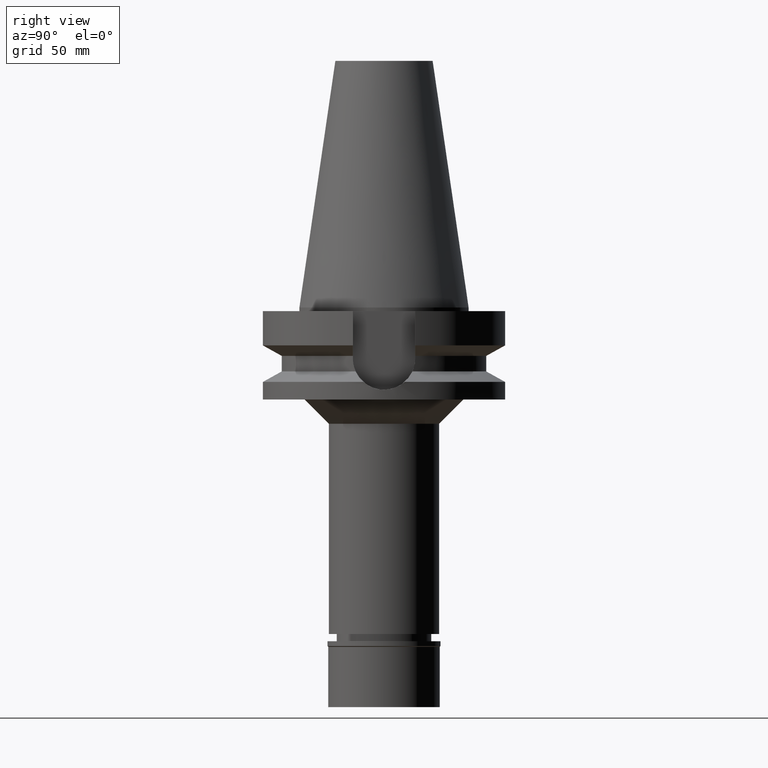
[diagram: clean part render]
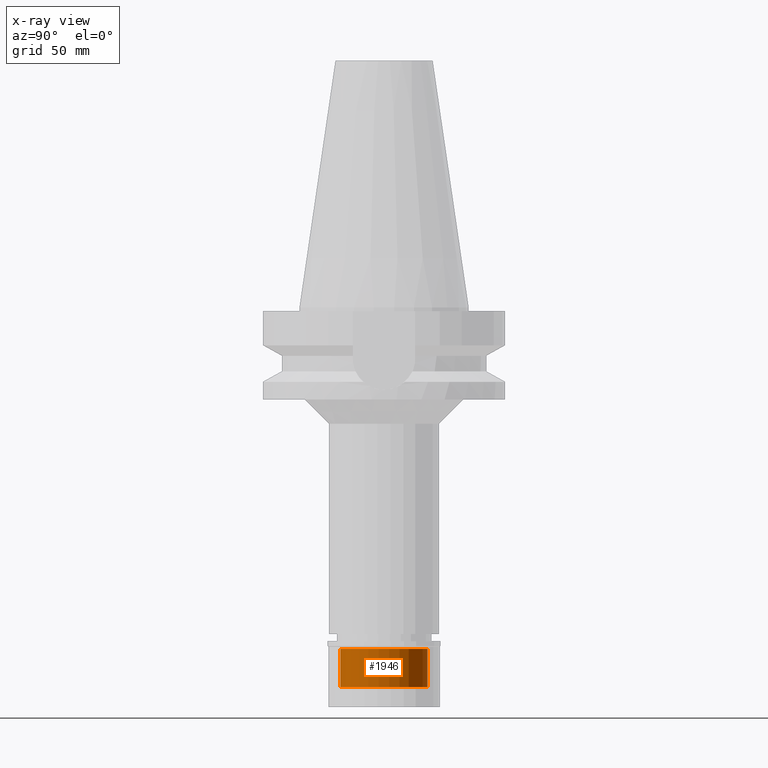
[diagram: x-ray — body ghosted, one internal face saturated and labeled with its STEP entity id]
A machine part, right view, then the same camera in x-ray: the body is ghosted and one INTERNAL B-rep face — a face not visible from any outside direction — is saturated and labeled: STEP entity #1946.
In plain terms, the highlighted cylindrical surface (partial cylindrical patch) has radius 18 mm, axis along (0, 0, -1).
Its self-contained STEP definition (entity closure, byte-faithful):
#132 = CARTESIAN_POINT ( 'NONE',  ( 0.0000000000000000000, 0.0000000000000000000, -19.00000000000000000 ) ) ;
#159 = CARTESIAN_POINT ( 'NONE',  ( 0.0000000000000000000, 0.0000000000000000000, 0.0000000000000000000 ) ) ;
#183 = VERTEX_POINT ( 'NONE', #1956 ) ;
#232 = AXIS2_PLACEMENT_3D ( 'NONE', #132, #595, #2562 ) ;
#238 = AXIS2_PLACEMENT_3D ( 'NONE', #868, #592, #2280 ) ;
#240 = CARTESIAN_POINT ( 'NONE',  ( 0.0000000000000000000, 18.00000000000000000, -19.00000000000000000 ) ) ;
#242 = ORIENTED_EDGE ( 'NONE', *, *, #1844, .T. ) ;
#248 = CARTESIAN_POINT ( 'NONE',  ( 0.0000000000000000000, 18.00000000000000000, -19.00000000000000000 ) ) ;
#379 = AXIS2_PLACEMENT_3D ( 'NONE', #159, #1108, #2089 ) ;
#380 = FACE_OUTER_BOUND ( 'NONE', #2477, .T. ) ;
#524 = VECTOR ( 'NONE', #2908, 1000.000000000000000 ) ;
#592 = DIRECTION ( 'NONE',  ( 0.0000000000000000000, 0.0000000000000000000, 1.000000000000000000 ) ) ;
#595 = DIRECTION ( 'NONE',  ( 0.0000000000000000000, 0.0000000000000000000, -1.000000000000000000 ) ) ;
#655 = EDGE_CURVE ( 'NONE', #2796, #1404, #1716, .T. ) ;
#868 = CARTESIAN_POINT ( 'NONE',  ( 0.0000000000000000000, 0.0000000000000000000, -3.200000000000000178 ) ) ;
#1080 = CARTESIAN_POINT ( 'NONE',  ( 0.0000000000000000000, -18.00000000000000000, -3.200000000000000178 ) ) ;
#1108 = DIRECTION ( 'NONE',  ( 0.0000000000000000000, 0.0000000000000000000, -1.000000000000000000 ) ) ;
#1256 = ORIENTED_EDGE ( 'NONE', *, *, #2520, .T. ) ;
#1352 = CYLINDRICAL_SURFACE ( 'NONE', #379, 18.00000000000000000 ) ;
#1389 = DIRECTION ( 'NONE',  ( 0.0000000000000000000, 0.0000000000000000000, 1.000000000000000000 ) ) ;
#1404 = VERTEX_POINT ( 'NONE', #1080 ) ;
#1522 = VERTEX_POINT ( 'NONE', #248 ) ;
#1716 = LINE ( 'NONE', #2688, #524 ) ;
#1844 = EDGE_CURVE ( 'NONE', #1522, #2796, #3130, .T. ) ;
#1900 = VECTOR ( 'NONE', #1389, 1000.000000000000000 ) ;
#1946 = ADVANCED_FACE ( 'NONE', ( #380 ), #1352, .F. ) ;
#1956 = CARTESIAN_POINT ( 'NONE',  ( 0.0000000000000000000, 18.00000000000000000, -3.200000000000000178 ) ) ;
#2089 = DIRECTION ( 'NONE',  ( 0.0000000000000000000, -1.000000000000000000, 0.0000000000000000000 ) ) ;
#2280 = DIRECTION ( 'NONE',  ( 0.0000000000000000000, -1.000000000000000000, 0.0000000000000000000 ) ) ;
#2282 = ORIENTED_EDGE ( 'NONE', *, *, #2327, .F. ) ;
#2327 = EDGE_CURVE ( 'NONE', #1522, #183, #2425, .T. ) ;
#2362 = ORIENTED_EDGE ( 'NONE', *, *, #655, .T. ) ;
#2425 = LINE ( 'NONE', #240, #1900 ) ;
#2477 = EDGE_LOOP ( 'NONE', ( #242, #2362, #1256, #2282 ) ) ;
#2520 = EDGE_CURVE ( 'NONE', #1404, #183, #2728, .T. ) ;
#2562 = DIRECTION ( 'NONE',  ( 0.0000000000000000000, 1.000000000000000000, 0.0000000000000000000 ) ) ;
#2688 = CARTESIAN_POINT ( 'NONE',  ( 0.0000000000000000000, -18.00000000000000000, -19.00000000000000000 ) ) ;
#2728 = CIRCLE ( 'NONE', #238, 18.00000000000000000 ) ;
#2796 = VERTEX_POINT ( 'NONE', #2880 ) ;
#2880 = CARTESIAN_POINT ( 'NONE',  ( 0.0000000000000000000, -18.00000000000000000, -19.00000000000000000 ) ) ;
#2908 = DIRECTION ( 'NONE',  ( 0.0000000000000000000, 0.0000000000000000000, 1.000000000000000000 ) ) ;
#3130 = CIRCLE ( 'NONE', #232, 18.00000000000000000 ) ;